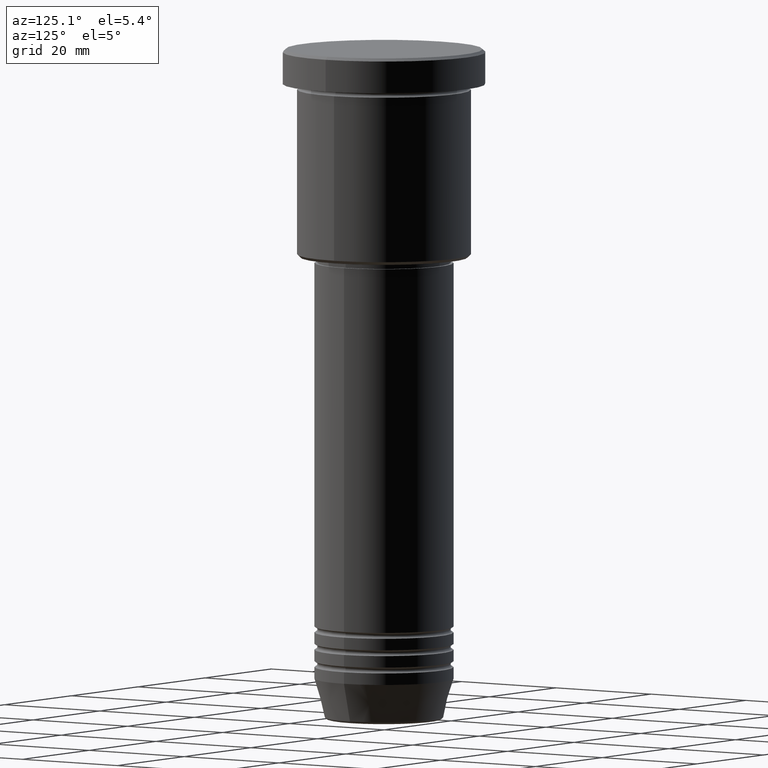
[diagram: clean part render]
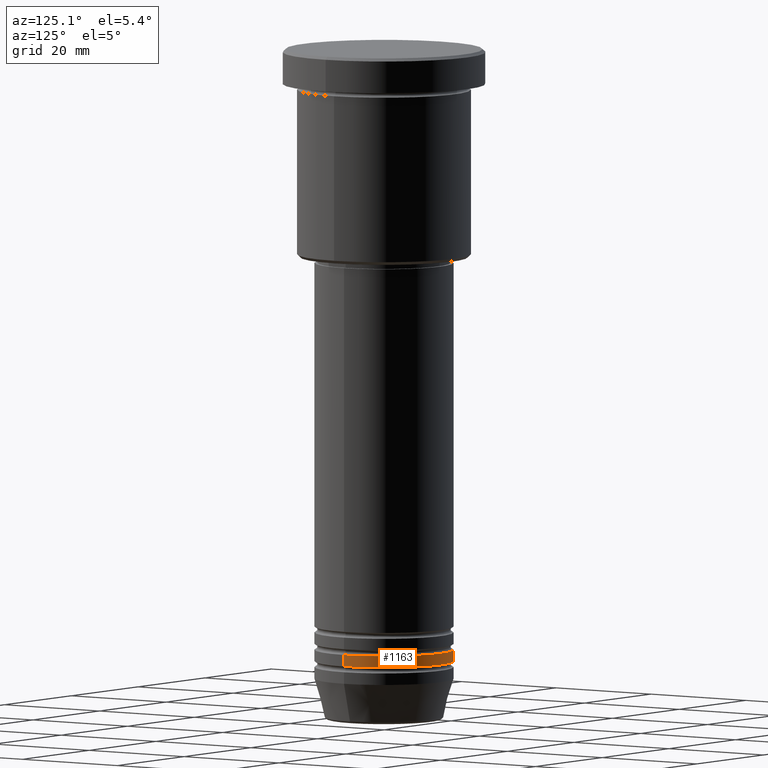
[diagram: same view with one face highlighted and labeled with its STEP entity id]
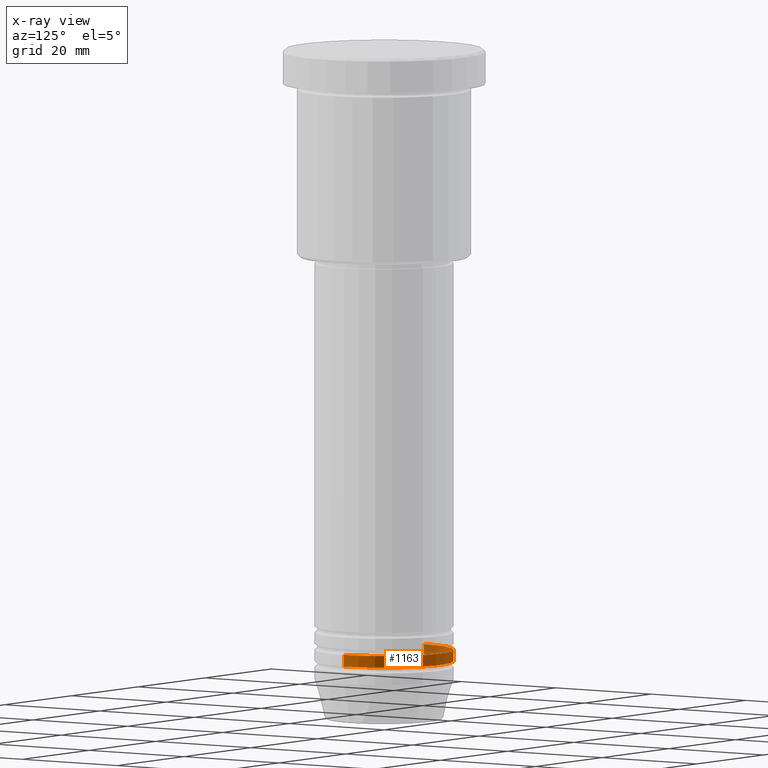
[diagram: x-ray of the same camera — body ghosted, the highlighted face saturated]
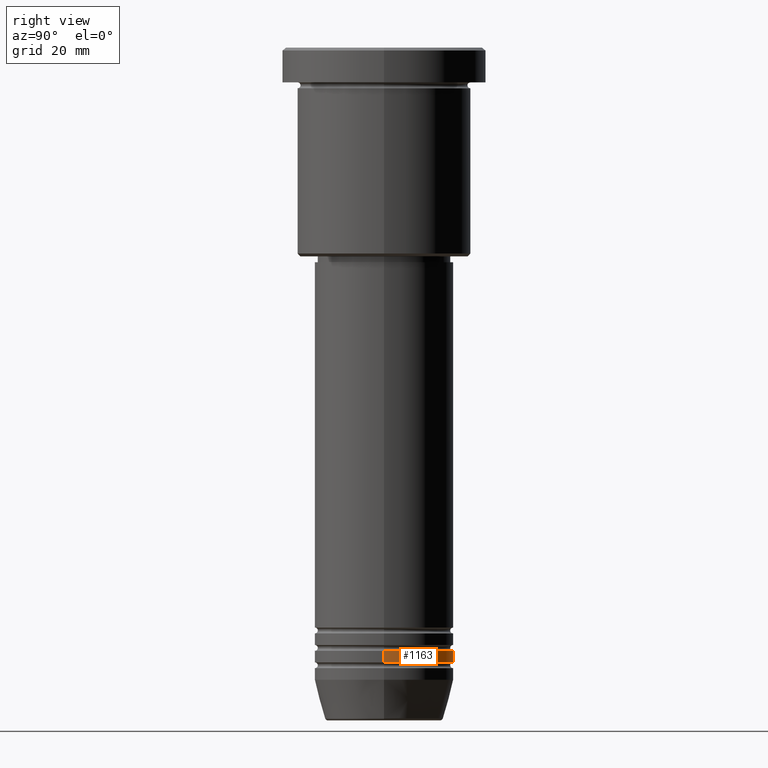
[diagram: same view with one face highlighted and labeled with its STEP entity id]
A machine part, auxiliary view. The second image highlights one B-rep face of the part: STEP entity #1163.
The next image is the same camera in x-ray: the body ghosted, the highlighted face saturated — about 10% of this face is hidden behind the body in this view.
A second angle (right view) of the same face is appended — the face is thin or edge-on in the first view.
In plain terms, the highlighted cylindrical surface (partial cylindrical patch) has radius 12 mm, axis along (-0, -0, 1).
Its self-contained STEP definition (entity closure, byte-faithful):
#7 = DIRECTION ( 'NONE',  ( 1.000000000000000000, 0.000000000000000000, 0.000000000000000000 ) ) ;
#108 = EDGE_CURVE ( 'NONE', #528, #297, #1017, .T. ) ;
#121 = CARTESIAN_POINT ( 'NONE',  ( 12.00000000000000000, 0.000000000000000000, -105.9999999999999858 ) ) ;
#126 = DIRECTION ( 'NONE',  ( -0.000000000000000000, -0.000000000000000000, 1.000000000000000000 ) ) ;
#147 = CARTESIAN_POINT ( 'NONE',  ( 12.00000000000000000, 0.000000000000000000, -104.0000000000000000 ) ) ;
#166 = EDGE_LOOP ( 'NONE', ( #1107, #284, #550, #519 ) ) ;
#200 = CARTESIAN_POINT ( 'NONE',  ( 0.000000000000000000, 0.000000000000000000, -105.9999999999999858 ) ) ;
#208 = DIRECTION ( 'NONE',  ( -0.000000000000000000, -0.000000000000000000, 1.000000000000000000 ) ) ;
#249 = DIRECTION ( 'NONE',  ( 1.000000000000000000, 0.000000000000000000, 0.000000000000000000 ) ) ;
#258 = CARTESIAN_POINT ( 'NONE',  ( 0.000000000000000000, 0.000000000000000000, -104.0000000000000000 ) ) ;
#276 = EDGE_CURVE ( 'NONE', #528, #793, #498, .T. ) ;
#284 = ORIENTED_EDGE ( 'NONE', *, *, #670, .T. ) ;
#297 = VERTEX_POINT ( 'NONE', #402 ) ;
#366 = AXIS2_PLACEMENT_3D ( 'NONE', #852, #126, #1065 ) ;
#390 = LINE ( 'NONE', #941, #842 ) ;
#402 = CARTESIAN_POINT ( 'NONE',  ( -12.00000000000000000, 1.469576158976823947E-15, -105.9999999999999858 ) ) ;
#498 = LINE ( 'NONE', #774, #680 ) ;
#519 = ORIENTED_EDGE ( 'NONE', *, *, #276, .F. ) ;
#528 = VERTEX_POINT ( 'NONE', #121 ) ;
#541 = CIRCLE ( 'NONE', #632, 12.00000000000000000 ) ;
#550 = ORIENTED_EDGE ( 'NONE', *, *, #878, .F. ) ;
#632 = AXIS2_PLACEMENT_3D ( 'NONE', #258, #714, #249 ) ;
#670 = EDGE_CURVE ( 'NONE', #297, #1071, #390, .T. ) ;
#680 = VECTOR ( 'NONE', #208, 1000.000000000000000 ) ;
#714 = DIRECTION ( 'NONE',  ( -0.000000000000000000, -0.000000000000000000, 1.000000000000000000 ) ) ;
#770 = DIRECTION ( 'NONE',  ( -0.000000000000000000, -0.000000000000000000, 1.000000000000000000 ) ) ;
#774 = CARTESIAN_POINT ( 'NONE',  ( 12.00000000000000000, 0.000000000000000000, 0.000000000000000000 ) ) ;
#793 = VERTEX_POINT ( 'NONE', #147 ) ;
#842 = VECTOR ( 'NONE', #770, 1000.000000000000000 ) ;
#852 = CARTESIAN_POINT ( 'NONE',  ( 0.000000000000000000, 0.000000000000000000, 0.000000000000000000 ) ) ;
#858 = FACE_OUTER_BOUND ( 'NONE', #166, .T. ) ;
#878 = EDGE_CURVE ( 'NONE', #793, #1071, #541, .T. ) ;
#904 = AXIS2_PLACEMENT_3D ( 'NONE', #200, #1023, #7 ) ;
#928 = CARTESIAN_POINT ( 'NONE',  ( -12.00000000000000000, 1.469576158976823947E-15, -104.0000000000000000 ) ) ;
#941 = CARTESIAN_POINT ( 'NONE',  ( -12.00000000000000000, 1.469576158976823947E-15, 0.000000000000000000 ) ) ;
#1017 = CIRCLE ( 'NONE', #904, 12.00000000000000000 ) ;
#1023 = DIRECTION ( 'NONE',  ( -0.000000000000000000, -0.000000000000000000, 1.000000000000000000 ) ) ;
#1056 = CYLINDRICAL_SURFACE ( 'NONE', #366, 12.00000000000000000 ) ;
#1065 = DIRECTION ( 'NONE',  ( 1.000000000000000000, 0.000000000000000000, 0.000000000000000000 ) ) ;
#1071 = VERTEX_POINT ( 'NONE', #928 ) ;
#1107 = ORIENTED_EDGE ( 'NONE', *, *, #108, .T. ) ;
#1163 = ADVANCED_FACE ( 'NONE', ( #858 ), #1056, .T. ) ;